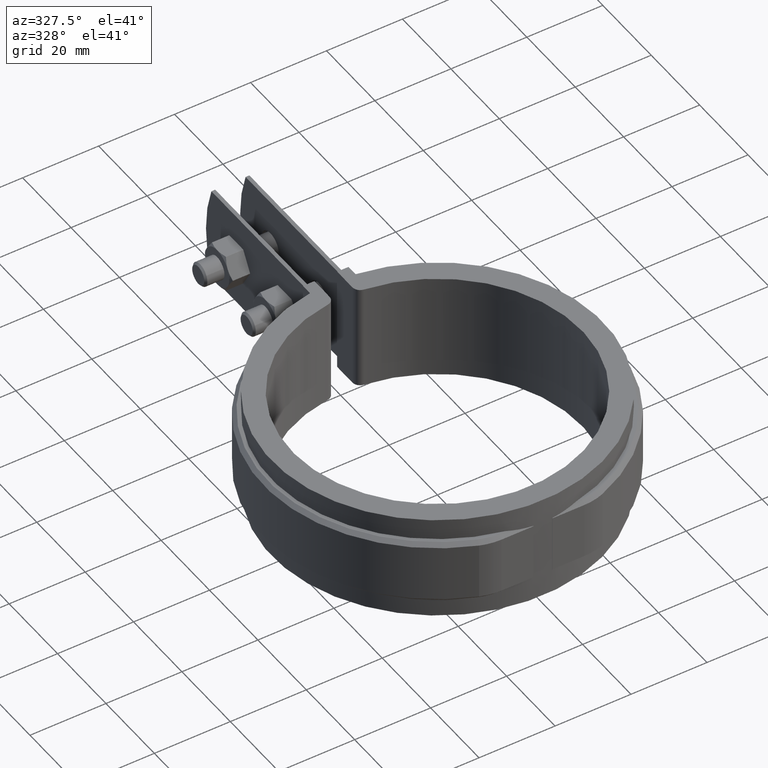
[diagram: clean part render]
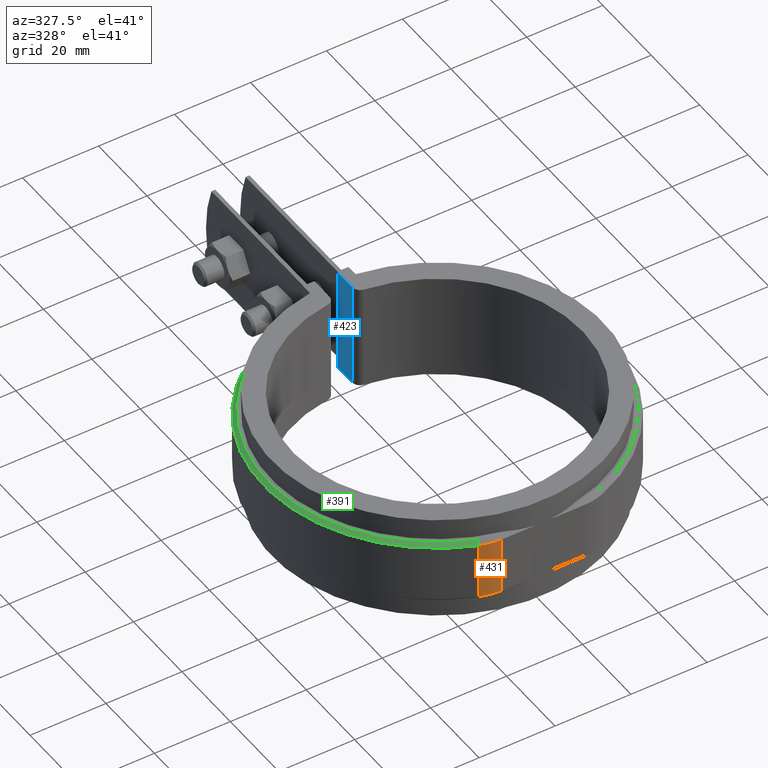
[diagram: same view with three faces highlighted in distinct colors, each labeled with its STEP entity id]
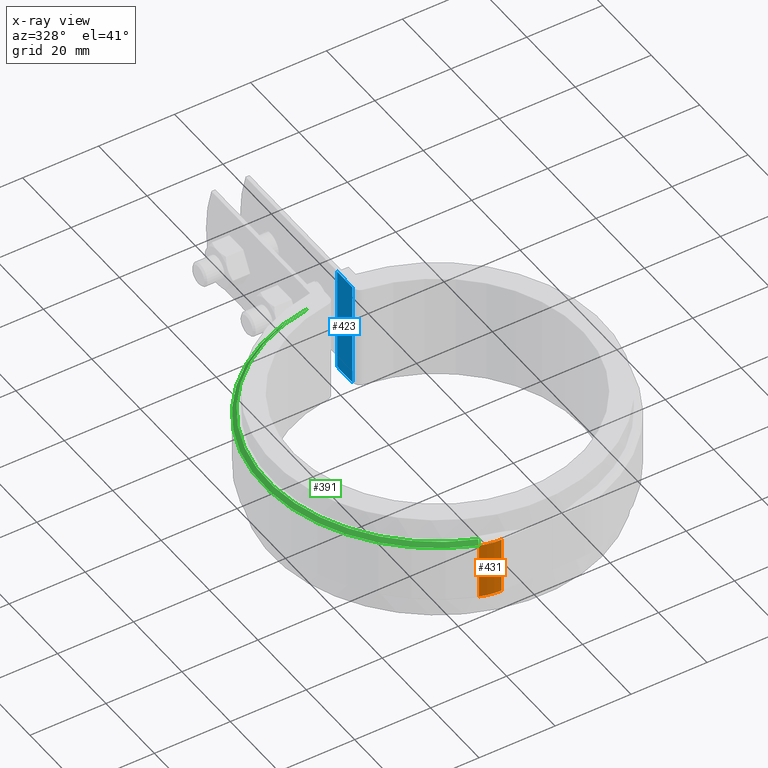
[diagram: x-ray of the same camera — body ghosted, the three highlighted faces saturated]
A machine part, auxiliary view with three faces highlighted in distinct colors.
The next image is the same camera in x-ray (body ghosted, the three faces saturated) — at least one of them is partly hidden behind the body in this view.
Their STEP definitions:

[orange] entity #431 — the highlighted cylindrical surface (partial cylindrical patch) has radius 15 mm, axis along (0, 0, 1).
#431 = ADVANCED_FACE( '', ( #756 ), #757, .T. );
#756 = FACE_OUTER_BOUND( '', #1704, .T. );
#757 = CYLINDRICAL_SURFACE( '', #1705, 15.0000000000000 );
#1704 = EDGE_LOOP( '', ( #3404, #3405, #3406, #3407 ) );
#1705 = AXIS2_PLACEMENT_3D( '', #3408, #3409, #3410 );
#3404 = ORIENTED_EDGE( '', *, *, #4288, .T. );
#3405 = ORIENTED_EDGE( '', *, *, #4230, .T. );
#3406 = ORIENTED_EDGE( '', *, *, #4287, .F. );
#3407 = ORIENTED_EDGE( '', *, *, #4221, .T. );
#3408 = CARTESIAN_POINT( '', ( -10.8903627120496, -28.6500000000000, 8.50000000000000 ) );
#3409 = DIRECTION( '', ( 0.000000000000000, 0.000000000000000, 1.00000000000000 ) );
#3410 = DIRECTION( '', ( 0.109529025191676, -0.993983597772399, 0.000000000000000 ) );
#4221 = EDGE_CURVE( '', #4889, #4915, #4920, .F. );
#4230 = EDGE_CURVE( '', #4932, #4922, #4936, .T. );
#4287 = EDGE_CURVE( '', #4889, #4922, #5011, .T. );
#4288 = EDGE_CURVE( '', #4915, #4932, #5012, .T. );
#4889 = VERTEX_POINT( '', #7401 );
#4915 = VERTEX_POINT( '', #7444 );
#4920 = CIRCLE( '', #7450, 15.0000000000000 );
#4922 = VERTEX_POINT( '', #7452 );
#4932 = VERTEX_POINT( '', #7466 );
#4936 = CIRCLE( '', #7471, 15.0000000000000 );
#5011 = LINE( '', #7652, #7653 );
#5012 = LINE( '', #7654, #7655 );
#7401 = CARTESIAN_POINT( '', ( -10.8903627120496, -43.6500000000000, 7.50000000000000 ) );
#7444 = CARTESIAN_POINT( '', ( -16.2200671388275, -42.6712071778140, 7.50000000000000 ) );
#7450 = AXIS2_PLACEMENT_3D( '', #8416, #8417, #8418 );
#7452 = CARTESIAN_POINT( '', ( -10.8903627120496, -43.6500000000000, -7.50000000000000 ) );
#7466 = CARTESIAN_POINT( '', ( -16.2200671388275, -42.6712071778140, -7.50000000000000 ) );
#7471 = AXIS2_PLACEMENT_3D( '', #8433, #8434, #8435 );
#7652 = CARTESIAN_POINT( '', ( -10.8903627120496, -43.6500000000000, 8.50000000000000 ) );
#7653 = VECTOR( '', #8527, 1000.00000000000 );
#7654 = CARTESIAN_POINT( '', ( -16.2200671388275, -42.6712071778140, 8.50000000000000 ) );
#7655 = VECTOR( '', #8528, 1000.00000000000 );
#8416 = CARTESIAN_POINT( '', ( -10.8903627120496, -28.6500000000000, 7.50000000000000 ) );
#8417 = DIRECTION( '', ( 0.000000000000000, 0.000000000000000, 1.00000000000000 ) );
#8418 = DIRECTION( '', ( 1.00000000000000, 0.000000000000000, 0.000000000000000 ) );
#8433 = CARTESIAN_POINT( '', ( -10.8903627120496, -28.6500000000000, -7.50000000000000 ) );
#8434 = DIRECTION( '', ( 0.000000000000000, 0.000000000000000, 1.00000000000000 ) );
#8435 = DIRECTION( '', ( 1.00000000000000, 0.000000000000000, 0.000000000000000 ) );
#8527 = DIRECTION( '', ( 0.000000000000000, 0.000000000000000, -1.00000000000000 ) );
#8528 = DIRECTION( '', ( 0.000000000000000, 0.000000000000000, -1.00000000000000 ) );

[blue] entity #423 — the highlighted planar face has unit normal (-1, 0, 0).
#423 = ADVANCED_FACE( '', ( #740 ), #741, .T. );
#740 = FACE_OUTER_BOUND( '', #1688, .T. );
#741 = PLANE( '', #1689 );
#1688 = EDGE_LOOP( '', ( #3328, #3329, #3330, #3331 ) );
#1689 = AXIS2_PLACEMENT_3D( '', #3332, #3333, #3334 );
#3328 = ORIENTED_EDGE( '', *, *, #4278, .T. );
#3329 = ORIENTED_EDGE( '', *, *, #4279, .T. );
#3330 = ORIENTED_EDGE( '', *, *, #4247, .F. );
#3331 = ORIENTED_EDGE( '', *, *, #4089, .F. );
#3332 = CARTESIAN_POINT( '', ( 3.00000000000000, 46.1500000000000, -14.0000000000000 ) );
#3333 = DIRECTION( '', ( -1.00000000000000, 6.07153216591882E-017, 0.000000000000000 ) );
#3334 = DIRECTION( '', ( 6.07153216591882E-017, 1.00000000000000, 0.000000000000000 ) );
#4089 = EDGE_CURVE( '', #4684, #4685, #4686, .T. );
#4247 = EDGE_CURVE( '', #4685, #4957, #4958, .T. );
#4278 = EDGE_CURVE( '', #4684, #5001, #5002, .T. );
#4279 = EDGE_CURVE( '', #5001, #4957, #5003, .T. );
#4684 = VERTEX_POINT( '', #6583 );
#4685 = VERTEX_POINT( '', #6584 );
#4686 = LINE( '', #6585, #6586 );
#4957 = VERTEX_POINT( '', #7526 );
#4958 = LINE( '', #7527, #7528 );
#5001 = VERTEX_POINT( '', #7638 );
#5002 = LINE( '', #7639, #7640 );
#5003 = LINE( '', #7641, #7642 );
#6583 = CARTESIAN_POINT( '', ( 3.00000000000003, 46.1500000000000, -14.0000000000000 ) );
#6584 = CARTESIAN_POINT( '', ( 3.00000000000003, 46.1500000000000, 14.0000000000000 ) );
#6585 = CARTESIAN_POINT( '', ( 3.00000000000003, 46.1500000000000, -14.0000000000000 ) );
#6586 = VECTOR( '', #8263, 1000.00000000000 );
#7526 = CARTESIAN_POINT( '', ( 3.00000000000000, 39.8374509726714, 14.0000000000000 ) );
#7527 = CARTESIAN_POINT( '', ( 3.00000000000000, 46.1500000000000, 14.0000000000000 ) );
#7528 = VECTOR( '', #8459, 1000.00000000000 );
#7638 = CARTESIAN_POINT( '', ( 3.00000000000000, 39.8374509726714, -14.0000000000000 ) );
#7639 = CARTESIAN_POINT( '', ( 3.00000000000000, 46.1500000000000, -14.0000000000000 ) );
#7640 = VECTOR( '', #8508, 1000.00000000000 );
#7641 = CARTESIAN_POINT( '', ( 3.00000000000000, 39.8374509726714, -14.0000000000000 ) );
#7642 = VECTOR( '', #8509, 1000.00000000000 );
#8263 = DIRECTION( '', ( 0.000000000000000, 0.000000000000000, 1.00000000000000 ) );
#8459 = DIRECTION( '', ( -6.07153216591882E-017, -1.00000000000000, 0.000000000000000 ) );
#8508 = DIRECTION( '', ( -6.07153216591882E-017, -1.00000000000000, 0.000000000000000 ) );
#8509 = DIRECTION( '', ( 0.000000000000000, 0.000000000000000, 1.00000000000000 ) );

[green] entity #391 — the highlighted conical surface has half-angle 45 deg.
#391 = ADVANCED_FACE( '', ( #675 ), #676, .T. );
#675 = FACE_OUTER_BOUND( '', #1513, .T. );
#676 = CONICAL_SURFACE( '', #1514, 44.6500000000000, 0.785398163397449 );
#1513 = EDGE_LOOP( '', ( #2986, #2987, #2988, #2989 ) );
#1514 = AXIS2_PLACEMENT_3D( '', #2990, #2991, #2992 );
#2986 = ORIENTED_EDGE( '', *, *, #4210, .F. );
#2987 = ORIENTED_EDGE( '', *, *, #4218, .F. );
#2988 = ORIENTED_EDGE( '', *, *, #4219, .F. );
#2989 = ORIENTED_EDGE( '', *, *, #4220, .F. );
#2990 = CARTESIAN_POINT( '', ( 0.000000000000000, 0.000000000000000, 8.50000000000000 ) );
#2991 = DIRECTION( '', ( 0.000000000000000, 0.000000000000000, -1.00000000000000 ) );
#2992 = DIRECTION( '', ( -1.00000000000000, 0.000000000000000, 0.000000000000000 ) );
#4210 = EDGE_CURVE( '', #4898, #4901, #4902, .T. );
#4218 = EDGE_CURVE( '', #4915, #4898, #4916, .F. );
#4219 = EDGE_CURVE( '', #4917, #4915, #4918, .T. );
#4220 = EDGE_CURVE( '', #4901, #4917, #4919, .T. );
#4898 = VERTEX_POINT( '', #7414 );
#4901 = VERTEX_POINT( '', #7418 );
#4902 = B_SPLINE_CURVE_WITH_KNOTS( '', 3, ( #7419, #7420, #7421, #7422 ), .UNSPECIFIED., .F., .F., ( 4, 4 ), ( 0.000000000000000, 0.00142055609219602 ), .UNSPECIFIED. );
#4915 = VERTEX_POINT( '', #7444 );
#4916 = CIRCLE( '', #7445, 45.6500000000000 );
#4917 = VERTEX_POINT( '', #7446 );
#4918 = LINE( '', #7447, #7448 );
#4919 = CIRCLE( '', #7449, 44.6500000000000 );
#7414 = CARTESIAN_POINT( '', ( -6.00000000000000, 45.2539777257204, 7.50000000000000 ) );
#7418 = CARTESIAN_POINT( '', ( -6.00000000000000, 44.2450279692532, 8.50000000000000 ) );
#7419 = CARTESIAN_POINT( '', ( -6.00000000000000, 45.2539777257204, 7.50000000000000 ) );
#7420 = CARTESIAN_POINT( '', ( -6.00000000000000, 44.9176939588437, 7.83336644240438 ) );
#7421 = CARTESIAN_POINT( '', ( -6.00000000000000, 44.5813781116257, 8.16670052728487 ) );
#7422 = CARTESIAN_POINT( '', ( -6.00000000000000, 44.2450279692532, 8.50000000000000 ) );
#7444 = CARTESIAN_POINT( '', ( -16.2200671388275, -42.6712071778140, 7.50000000000000 ) );
#7445 = AXIS2_PLACEMENT_3D( '', #8409, #8410, #8411 );
#7446 = CARTESIAN_POINT( '', ( -15.8647535103756, -41.7364600326264, 8.50000000000000 ) );
#7447 = CARTESIAN_POINT( '', ( -15.8647535103756, -41.7364600326264, 8.50000000000000 ) );
#7448 = VECTOR( '', #8412, 1000.00000000000 );
#7449 = AXIS2_PLACEMENT_3D( '', #8413, #8414, #8415 );
#8409 = CARTESIAN_POINT( '', ( 0.000000000000000, 0.000000000000000, 7.50000000000000 ) );
#8410 = DIRECTION( '', ( 0.000000000000000, 0.000000000000000, 1.00000000000000 ) );
#8411 = DIRECTION( '', ( 1.00000000000000, 0.000000000000000, 0.000000000000000 ) );
#8412 = DIRECTION( '', ( -0.251244676126309, -0.660966045056921, -0.707106781186547 ) );
#8413 = CARTESIAN_POINT( '', ( 0.000000000000000, 0.000000000000000, 8.50000000000000 ) );
#8414 = DIRECTION( '', ( 0.000000000000000, 0.000000000000000, 1.00000000000000 ) );
#8415 = DIRECTION( '', ( 1.00000000000000, 0.000000000000000, 0.000000000000000 ) );